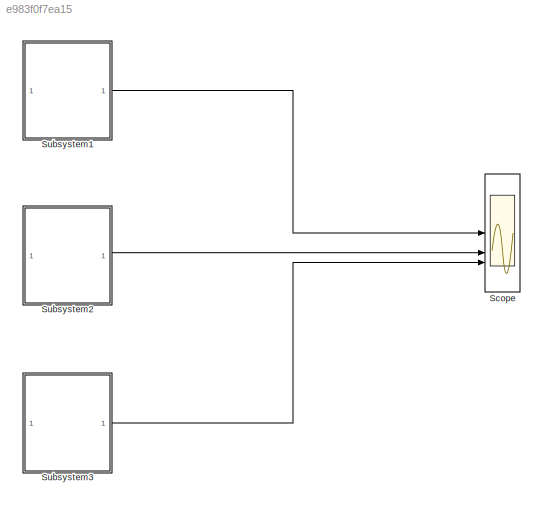
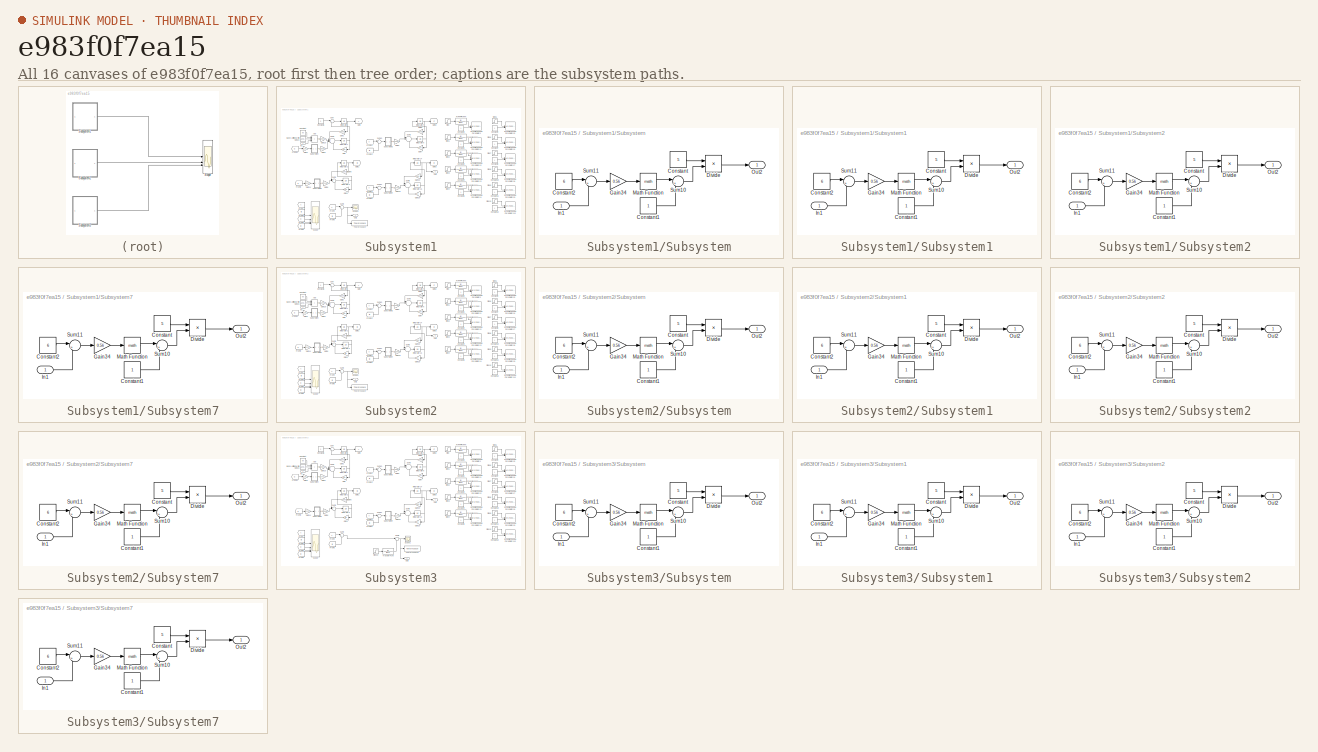
[diagram: thumbnail index - all 16 canvases of the model, root first then tree order]
MODEL slx_e983f0f7ea15
KIND model
CONFIG AbsTol = auto
CONFIG EnableMultiTasking = off
CONFIG FixedStep = auto
CONFIG MaxStep = auto
CONFIG MinStep = auto
CONFIG RelTol = 1e-3
CONFIG SampleTimeConstraint = Unconstrained
CONFIG SolverName = VariableStepAuto
CONFIG StartTime = 0.0
CONFIG StopTime = 10.0
BLOCK [Scope] Scope
  Floating = off
  NumInputPorts = 3
  ScopeSpecificationString = Simulink.scopes.TimeScopeBlockCfg('CurrentConfiguration', extmgr.ConfigurationSet(extmgr.Configuration('Core','General UI',true),extmgr.Configuration('Core','Source UI',true),extmgr.Configuration('Sources','WiredSimulink',true,'DataLoggingVariableName','ScopeData1'),extmgr.Configuration('Visuals','Time Domain',true,'SerializedDisplays',{struct('MinYLimReal','-0.12601','MaxYLimReal','0.55798','YLab...<+1520ch>
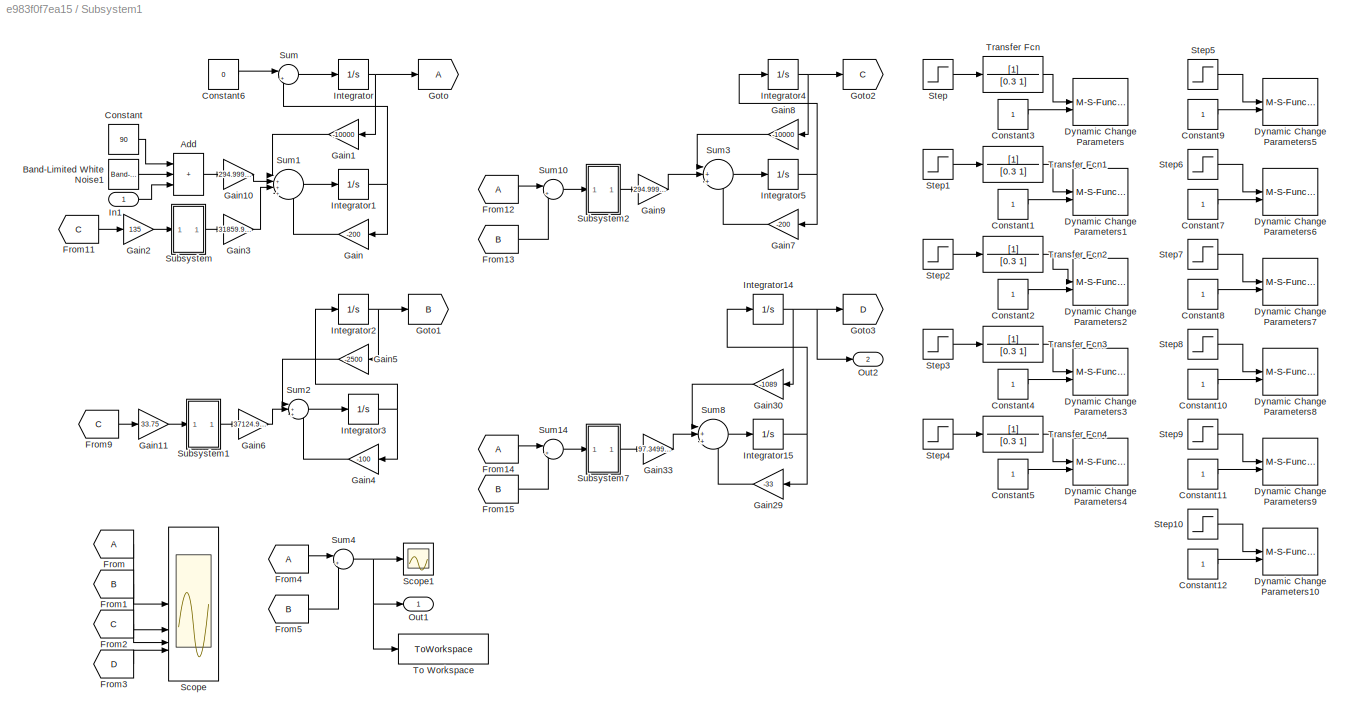
BLOCK [SubSystem] Subsystem1
  Commented = on
BLOCK [Sum] Subsystem1/Add
  IconShape = rectangular
  Inputs = +++
BLOCK [Reference] Subsystem1/Band-Limited White Noise1  REF=simulink/Sources/Band-Limited
White Noise
  SourceBlock = simulink/Sources/Band-Limited\nWhite Noise
  SourceType = Band-Limited White Noise.
BLOCK [Constant] Subsystem1/Constant
  Value = 90
BLOCK [Constant] Subsystem1/Constant1
BLOCK [Constant] Subsystem1/Constant10
BLOCK [Constant] Subsystem1/Constant11
BLOCK [Constant] Subsystem1/Constant12
BLOCK [Constant] Subsystem1/Constant2
BLOCK [Constant] Subsystem1/Constant3
BLOCK [Constant] Subsystem1/Constant4
BLOCK [Constant] Subsystem1/Constant5
BLOCK [Constant] Subsystem1/Constant6
  Value = 0
BLOCK [Constant] Subsystem1/Constant7
BLOCK [Constant] Subsystem1/Constant8
BLOCK [Constant] Subsystem1/Constant9
BLOCK [M-S-Function] Subsystem1/Dynamic Change Parameters
  FunctionName = Sfun_DCP
  Parameters = block_name,par_name,sample_time,dimension
  StopFcn = close(clf)
BLOCK [M-S-Function] Subsystem1/Dynamic Change Parameters1
  FunctionName = Sfun_DCP
  Parameters = block_name,par_name,sample_time,dimension
  StopFcn = close(clf)
BLOCK [M-S-Function] Subsystem1/Dynamic Change Parameters10
  FunctionName = Sfun_DCP
  Parameters = block_name,par_name,sample_time,dimension
  StopFcn = close(clf)
BLOCK [M-S-Function] Subsystem1/Dynamic Change Parameters2
  FunctionName = Sfun_DCP
  Parameters = block_name,par_name,sample_time,dimension
  StopFcn = close(clf)
BLOCK [M-S-Function] Subsystem1/Dynamic Change Parameters3
  FunctionName = Sfun_DCP
  Parameters = block_name,par_name,sample_time,dimension
  StopFcn = close(clf)
BLOCK [M-S-Function] Subsystem1/Dynamic Change Parameters4
  FunctionName = Sfun_DCP
  Parameters = block_name,par_name,sample_time,dimension
  StopFcn = close(clf)
BLOCK [M-S-Function] Subsystem1/Dynamic Change Parameters5
  FunctionName = Sfun_DCP
  Parameters = block_name,par_name,sample_time,dimension
  StopFcn = close(clf)
BLOCK [M-S-Function] Subsystem1/Dynamic Change Parameters6
  FunctionName = Sfun_DCP
  Parameters = block_name,par_name,sample_time,dimension
  StopFcn = close(clf)
BLOCK [M-S-Function] Subsystem1/Dynamic Change Parameters7
  FunctionName = Sfun_DCP
  Parameters = block_name,par_name,sample_time,dimension
  StopFcn = close(clf)
BLOCK [M-S-Function] Subsystem1/Dynamic Change Parameters8
  FunctionName = Sfun_DCP
  Parameters = block_name,par_name,sample_time,dimension
  StopFcn = close(clf)
BLOCK [M-S-Function] Subsystem1/Dynamic Change Parameters9
  FunctionName = Sfun_DCP
  Parameters = block_name,par_name,sample_time,dimension
  StopFcn = close(clf)
BLOCK [From] Subsystem1/From
BLOCK [From] Subsystem1/From1
  GotoTag = B
BLOCK [From] Subsystem1/From11
  GotoTag = C
BLOCK [From] Subsystem1/From12
BLOCK [From] Subsystem1/From13
  GotoTag = B
BLOCK [From] Subsystem1/From14
BLOCK [From] Subsystem1/From15
  GotoTag = B
BLOCK [From] Subsystem1/From2
  GotoTag = C
BLOCK [From] Subsystem1/From3
  GotoTag = D
BLOCK [From] Subsystem1/From4
BLOCK [From] Subsystem1/From5
  GotoTag = B
BLOCK [From] Subsystem1/From9
  GotoTag = C
BLOCK [Gain] Subsystem1/Gain
  Gain = -200
BLOCK [Gain] Subsystem1/Gain1
  Gain = -10000
BLOCK [Gain] Subsystem1/Gain10
  Gain = 294.999964251017
BLOCK [Gain] Subsystem1/Gain11
  Gain = 33.75
BLOCK [Gain] Subsystem1/Gain2
  Gain = 135
BLOCK [Gain] Subsystem1/Gain29
  Gain = -33
BLOCK [Gain] Subsystem1/Gain3
  Gain = 31859.9961391099
BLOCK [Gain] Subsystem1/Gain30
  Gain = -1089
BLOCK [Gain] Subsystem1/Gain33
  Gain = 97.3499882028357
BLOCK [Gain] Subsystem1/Gain4
  Gain = -100
BLOCK [Gain] Subsystem1/Gain5
  Gain = -2500
BLOCK [Gain] Subsystem1/Gain6
  Gain = 37124.9999999991
BLOCK [Gain] Subsystem1/Gain7
  Gain = -200
BLOCK [Gain] Subsystem1/Gain8
  Gain = -10000
BLOCK [Gain] Subsystem1/Gain9
  Gain = 294.999964251017
BLOCK [Goto] Subsystem1/Goto
BLOCK [Goto] Subsystem1/Goto1
  GotoTag = B
BLOCK [Goto] Subsystem1/Goto2
  GotoTag = C
BLOCK [Goto] Subsystem1/Goto3
  GotoTag = D
BLOCK [Inport] Subsystem1/In1
BLOCK [Integrator] Subsystem1/Integrator
BLOCK [Integrator] Subsystem1/Integrator1
BLOCK [Integrator] Subsystem1/Integrator14
BLOCK [Integrator] Subsystem1/Integrator15
BLOCK [Integrator] Subsystem1/Integrator2
BLOCK [Integrator] Subsystem1/Integrator3
BLOCK [Integrator] Subsystem1/Integrator4
BLOCK [Integrator] Subsystem1/Integrator5
BLOCK [Outport] Subsystem1/Out1
BLOCK [Outport] Subsystem1/Out2
  Port = 2
BLOCK [Scope] Subsystem1/Scope
  Floating = off
  NumInputPorts = 4
  ScopeSpecificationString = Simulink.scopes.TimeScopeBlockCfg('CurrentConfiguration', extmgr.ConfigurationSet(extmgr.Configuration('Core','General UI',true),extmgr.Configuration('Core','Source UI',true),extmgr.Configuration('Sources','WiredSimulink',true,'DataLoggingVariableName','ScopeData1'),extmgr.Configuration('Visuals','Time Domain',true,'SerializedDisplays',{struct('MinYLimReal','-0.41375','MaxYLimReal','3.72374','YLab...<+3436ch>
BLOCK [Scope] Subsystem1/Scope1
  Floating = off
  NumInputPorts = 1
  ScopeSpecificationString = Simulink.scopes.TimeScopeBlockCfg('CurrentConfiguration', extmgr.ConfigurationSet(extmgr.Configuration('Core','General UI',true),extmgr.Configuration('Core','Source UI',true),extmgr.Configuration('Sources','WiredSimulink',true),extmgr.Configuration('Visuals','Time Domain',true,'SerializedDisplays',{struct('MinYLimReal','-0.14551','MaxYLimReal','0.87431','YLabelReal','','MinYLimMag','0.00000','MaxY...<+1376ch>
BLOCK [Step] Subsystem1/Step
  After = 295
  Before = 235
  SampleTime = 0
  Time = 5.7
BLOCK [Step] Subsystem1/Step1
  After = 295*108
  Before = 235*108
  SampleTime = 0
  Time = 5.7
BLOCK [Step] Subsystem1/Step10
  After = -200
  Before = -200
  SampleTime = 0
  Time = 5.7
BLOCK [Step] Subsystem1/Step2
  After = 24*50*33.75
  Before = 22*50*33.75
  SampleTime = 0
  Time = 100
BLOCK [Step] Subsystem1/Step3
  After = 295
  Before = 235
  SampleTime = 0
  Time = 5.7
BLOCK [Step] Subsystem1/Step4
  After = 2.95*33
  Before = 2.35*33
  SampleTime = 0
  Time = 5.7
BLOCK [Step] Subsystem1/Step5
  After = -10000
  Before = -10000
  SampleTime = 0
  Time = 5.7
BLOCK [Step] Subsystem1/Step6
  After = -200
  Before = -200
  SampleTime = 0
  Time = 5.7
BLOCK [Step] Subsystem1/Step7
  After = -2500
  Before = -2500
  SampleTime = 0
  Time = 100
BLOCK [Step] Subsystem1/Step8
  After = -100
  Before = -100
  SampleTime = 0
  Time = 5.7
BLOCK [Step] Subsystem1/Step9
  After = -10000
  Before = -10000
  SampleTime = 0
  Time = 5.7
BLOCK [SubSystem] Subsystem1/Subsystem
BLOCK [Constant] Subsystem1/Subsystem/Constant
  Value = 5
BLOCK [Constant] Subsystem1/Subsystem/Constant1
BLOCK [Constant] Subsystem1/Subsystem/Constant2
  Value = 6
BLOCK [Product] Subsystem1/Subsystem/Divide
  Inputs = */
BLOCK [Gain] Subsystem1/Subsystem/Gain34
  Gain = 0.56
BLOCK [Inport] Subsystem1/Subsystem/In1
BLOCK [Math] Subsystem1/Subsystem/Math Function
BLOCK [Outport] Subsystem1/Subsystem/Out2
BLOCK [Sum] Subsystem1/Subsystem/Sum10
  Inputs = |++
BLOCK [Sum] Subsystem1/Subsystem/Sum11
  Inputs = |+-
BLOCK [SubSystem] Subsystem1/Subsystem1
BLOCK [Constant] Subsystem1/Subsystem1/Constant
  Value = 5
BLOCK [Constant] Subsystem1/Subsystem1/Constant1
BLOCK [Constant] Subsystem1/Subsystem1/Constant2
  Value = 6
BLOCK [Product] Subsystem1/Subsystem1/Divide
  Inputs = */
BLOCK [Gain] Subsystem1/Subsystem1/Gain34
  Gain = 0.56
BLOCK [Inport] Subsystem1/Subsystem1/In1
BLOCK [Math] Subsystem1/Subsystem1/Math Function
BLOCK [Outport] Subsystem1/Subsystem1/Out2
BLOCK [Sum] Subsystem1/Subsystem1/Sum10
  Inputs = |++
BLOCK [Sum] Subsystem1/Subsystem1/Sum11
  Inputs = |+-
BLOCK [SubSystem] Subsystem1/Subsystem2
BLOCK [Constant] Subsystem1/Subsystem2/Constant
  Value = 5
BLOCK [Constant] Subsystem1/Subsystem2/Constant1
BLOCK [Constant] Subsystem1/Subsystem2/Constant2
  Value = 6
BLOCK [Product] Subsystem1/Subsystem2/Divide
  Inputs = */
BLOCK [Gain] Subsystem1/Subsystem2/Gain34
  Gain = 0.56
BLOCK [Inport] Subsystem1/Subsystem2/In1
BLOCK [Math] Subsystem1/Subsystem2/Math Function
BLOCK [Outport] Subsystem1/Subsystem2/Out2
BLOCK [Sum] Subsystem1/Subsystem2/Sum10
  Inputs = |++
BLOCK [Sum] Subsystem1/Subsystem2/Sum11
  Inputs = |+-
BLOCK [SubSystem] Subsystem1/Subsystem7
BLOCK [Constant] Subsystem1/Subsystem7/Constant
  Value = 5
BLOCK [Constant] Subsystem1/Subsystem7/Constant1
BLOCK [Constant] Subsystem1/Subsystem7/Constant2
  Value = 6
BLOCK [Product] Subsystem1/Subsystem7/Divide
  Inputs = */
BLOCK [Gain] Subsystem1/Subsystem7/Gain34
  Gain = 0.56
BLOCK [Inport] Subsystem1/Subsystem7/In1
BLOCK [Math] Subsystem1/Subsystem7/Math Function
BLOCK [Outport] Subsystem1/Subsystem7/Out2
BLOCK [Sum] Subsystem1/Subsystem7/Sum10
  Inputs = |++
BLOCK [Sum] Subsystem1/Subsystem7/Sum11
  Inputs = |+-
BLOCK [Sum] Subsystem1/Sum
  Inputs = |++
BLOCK [Sum] Subsystem1/Sum1
  Inputs = |++++
BLOCK [Sum] Subsystem1/Sum10
  Inputs = |+-
BLOCK [Sum] Subsystem1/Sum14
  Inputs = |+-
BLOCK [Sum] Subsystem1/Sum2
  Inputs = |+++
BLOCK [Sum] Subsystem1/Sum3
  Inputs = |+++
BLOCK [Sum] Subsystem1/Sum4
  Inputs = |+-
BLOCK [Sum] Subsystem1/Sum8
  Inputs = |+++
BLOCK [ToWorkspace] Subsystem1/To Workspace
  FixptAsFi = on
  MaxDataPoints = inf
  SampleTime = -1
  SaveFormat = Timeseries
  VariableName = simout1
BLOCK [TransferFcn] Subsystem1/Transfer Fcn
  Denominator = [0.3 1]
BLOCK [TransferFcn] Subsystem1/Transfer Fcn1
  Denominator = [0.3 1]
BLOCK [TransferFcn] Subsystem1/Transfer Fcn2
  Denominator = [0.3 1]
BLOCK [TransferFcn] Subsystem1/Transfer Fcn3
  Denominator = [0.3 1]
BLOCK [TransferFcn] Subsystem1/Transfer Fcn4
  Denominator = [0.3 1]
BLOCK [SubSystem] Subsystem2
BLOCK [Sum] Subsystem2/Add
  IconShape = rectangular
  Inputs = +++
BLOCK [Reference] Subsystem2/Band-Limited White Noise1  REF=simulink/Sources/Band-Limited
White Noise
  SourceBlock = simulink/Sources/Band-Limited\nWhite Noise
  SourceType = Band-Limited White Noise.
BLOCK [Constant] Subsystem2/Constant
  Value = 90
BLOCK [Constant] Subsystem2/Constant1
BLOCK [Constant] Subsystem2/Constant10
BLOCK [Constant] Subsystem2/Constant11
BLOCK [Constant] Subsystem2/Constant12
BLOCK [Constant] Subsystem2/Constant2
BLOCK [Constant] Subsystem2/Constant3
BLOCK [Constant] Subsystem2/Constant4
BLOCK [Constant] Subsystem2/Constant5
BLOCK [Constant] Subsystem2/Constant6
  Value = 0
BLOCK [Constant] Subsystem2/Constant7
BLOCK [Constant] Subsystem2/Constant8
BLOCK [Constant] Subsystem2/Constant9
BLOCK [M-S-Function] Subsystem2/Dynamic Change Parameters
  FunctionName = Sfun_DCP
  Parameters = block_name,par_name,sample_time,dimension
  StopFcn = close(clf)
BLOCK [M-S-Function] Subsystem2/Dynamic Change Parameters1
  FunctionName = Sfun_DCP
  Parameters = block_name,par_name,sample_time,dimension
  StopFcn = close(clf)
BLOCK [M-S-Function] Subsystem2/Dynamic Change Parameters10
  FunctionName = Sfun_DCP
  Parameters = block_name,par_name,sample_time,dimension
  StopFcn = close(clf)
BLOCK [M-S-Function] Subsystem2/Dynamic Change Parameters2
  FunctionName = Sfun_DCP
  Parameters = block_name,par_name,sample_time,dimension
  StopFcn = close(clf)
BLOCK [M-S-Function] Subsystem2/Dynamic Change Parameters3
  FunctionName = Sfun_DCP
  Parameters = block_name,par_name,sample_time,dimension
  StopFcn = close(clf)
BLOCK [M-S-Function] Subsystem2/Dynamic Change Parameters4
  FunctionName = Sfun_DCP
  Parameters = block_name,par_name,sample_time,dimension
  StopFcn = close(clf)
BLOCK [M-S-Function] Subsystem2/Dynamic Change Parameters5
  FunctionName = Sfun_DCP
  Parameters = block_name,par_name,sample_time,dimension
  StopFcn = close(clf)
BLOCK [M-S-Function] Subsystem2/Dynamic Change Parameters6
  FunctionName = Sfun_DCP
  Parameters = block_name,par_name,sample_time,dimension
  StopFcn = close(clf)
BLOCK [M-S-Function] Subsystem2/Dynamic Change Parameters7
  FunctionName = Sfun_DCP
  Parameters = block_name,par_name,sample_time,dimension
  StopFcn = close(clf)
BLOCK [M-S-Function] Subsystem2/Dynamic Change Parameters8
  FunctionName = Sfun_DCP
  Parameters = block_name,par_name,sample_time,dimension
  StopFcn = close(clf)
BLOCK [M-S-Function] Subsystem2/Dynamic Change Parameters9
  FunctionName = Sfun_DCP
  Parameters = block_name,par_name,sample_time,dimension
  StopFcn = close(clf)
BLOCK [From] Subsystem2/From
BLOCK [From] Subsystem2/From1
  GotoTag = B
BLOCK [From] Subsystem2/From11
  GotoTag = C
BLOCK [From] Subsystem2/From12
BLOCK [From] Subsystem2/From13
  GotoTag = B
BLOCK [From] Subsystem2/From14
BLOCK [From] Subsystem2/From15
  GotoTag = B
BLOCK [From] Subsystem2/From2
  GotoTag = C
BLOCK [From] Subsystem2/From3
  GotoTag = D
BLOCK [From] Subsystem2/From4
BLOCK [From] Subsystem2/From5
  GotoTag = B
BLOCK [From] Subsystem2/From9
  GotoTag = C
BLOCK [Gain] Subsystem2/Gain
  Gain = -190
BLOCK [Gain] Subsystem2/Gain1
  Gain = -9025
BLOCK [Gain] Subsystem2/Gain10
  Gain = 275.499975869437
BLOCK [Gain] Subsystem2/Gain11
  Gain = 33.75
BLOCK [Gain] Subsystem2/Gain2
  Gain = 135
BLOCK [Gain] Subsystem2/Gain29
  Gain = -33
BLOCK [Gain] Subsystem2/Gain3
  Gain = 29753.9973938992
BLOCK [Gain] Subsystem2/Gain30
  Gain = -1089
BLOCK [Gain] Subsystem2/Gain33
  Gain = 95.6999891859327
BLOCK [Gain] Subsystem2/Gain4
  Gain = -96
BLOCK [Gain] Subsystem2/Gain5
  Gain = -2304
BLOCK [Gain] Subsystem2/Gain6
  Gain = 38879.9989543421
BLOCK [Gain] Subsystem2/Gain7
  Gain = -190
BLOCK [Gain] Subsystem2/Gain8
  Gain = -9025
BLOCK [Gain] Subsystem2/Gain9
  Gain = 275.499975869437
BLOCK [Goto] Subsystem2/Goto
BLOCK [Goto] Subsystem2/Goto1
  GotoTag = B
BLOCK [Goto] Subsystem2/Goto2
  GotoTag = C
BLOCK [Goto] Subsystem2/Goto3
  GotoTag = D
BLOCK [Inport] Subsystem2/In1
BLOCK [Integrator] Subsystem2/Integrator
BLOCK [Integrator] Subsystem2/Integrator1
BLOCK [Integrator] Subsystem2/Integrator14
BLOCK [Integrator] Subsystem2/Integrator15
BLOCK [Integrator] Subsystem2/Integrator2
BLOCK [Integrator] Subsystem2/Integrator3
BLOCK [Integrator] Subsystem2/Integrator4
BLOCK [Integrator] Subsystem2/Integrator5
BLOCK [Outport] Subsystem2/Out1
BLOCK [Outport] Subsystem2/Out2
  Port = 2
BLOCK [Scope] Subsystem2/Scope
  Floating = off
  NumInputPorts = 4
  ScopeSpecificationString = Simulink.scopes.TimeScopeBlockCfg('CurrentConfiguration', extmgr.ConfigurationSet(extmgr.Configuration('Core','General UI',true),extmgr.Configuration('Core','Source UI',true),extmgr.Configuration('Sources','WiredSimulink',true,'DataLoggingVariableName','ScopeData1'),extmgr.Configuration('Visuals','Time Domain',true,'SerializedDisplays',{struct('MinYLimReal','-0.45253','MaxYLimReal','4.07276','YLab...<+3437ch>
BLOCK [Scope] Subsystem2/Scope1
  Floating = off
  NumInputPorts = 1
  ScopeSpecificationString = Simulink.scopes.TimeScopeBlockCfg('CurrentConfiguration', extmgr.ConfigurationSet(extmgr.Configuration('Core','General UI',true),extmgr.Configuration('Core','Source UI',true),extmgr.Configuration('Sources','WiredSimulink',true),extmgr.Configuration('Visuals','Time Domain',true,'SerializedDisplays',{struct('MinYLimReal','-0.12601','MaxYLimReal','0.55798','YLabelReal','','MinYLimMag','0.00000','MaxY...<+1376ch>
BLOCK [Step] Subsystem2/Step
  After = 2.90*95
  Before = 2.35*100
  SampleTime = 0
  Time = 5.7
BLOCK [Step] Subsystem2/Step1
  After = 2.90*95*108
  Before = 2.35*100*108
  SampleTime = 0
  Time = 5.7
BLOCK [Step] Subsystem2/Step10
  After = -190
  Before = -200
  SampleTime = 0
  Time = 5.7
BLOCK [Step] Subsystem2/Step2
  After = 24*48*33.75
  Before = 22*50*33.75
  SampleTime = 0
  Time = 5.7
BLOCK [Step] Subsystem2/Step3
  After = 2.90*95
  Before = 2.35*100
  SampleTime = 0
  Time = 5.7
BLOCK [Step] Subsystem2/Step4
  After = 2.90*33
  Before = 2.35*33
  SampleTime = 0
  Time = 5.7
BLOCK [Step] Subsystem2/Step5
  After = -9025
  Before = -10000
  SampleTime = 0
  Time = 5.7
BLOCK [Step] Subsystem2/Step6
  After = -190
  Before = -200
  SampleTime = 0
  Time = 5.7
BLOCK [Step] Subsystem2/Step7
  After = -2304
  Before = -2500
  SampleTime = 0
  Time = 5.7
BLOCK [Step] Subsystem2/Step8
  After = -96
  Before = -100
  SampleTime = 0
  Time = 5.7
BLOCK [Step] Subsystem2/Step9
  After = -9025
  Before = -10000
  SampleTime = 0
  Time = 5.7
BLOCK [SubSystem] Subsystem2/Subsystem
BLOCK [Constant] Subsystem2/Subsystem/Constant
  Value = 5
BLOCK [Constant] Subsystem2/Subsystem/Constant1
BLOCK [Constant] Subsystem2/Subsystem/Constant2
  Value = 6
BLOCK [Product] Subsystem2/Subsystem/Divide
  Inputs = */
BLOCK [Gain] Subsystem2/Subsystem/Gain34
  Gain = 0.56
BLOCK [Inport] Subsystem2/Subsystem/In1
BLOCK [Math] Subsystem2/Subsystem/Math Function
BLOCK [Outport] Subsystem2/Subsystem/Out2
BLOCK [Sum] Subsystem2/Subsystem/Sum10
  Inputs = |++
BLOCK [Sum] Subsystem2/Subsystem/Sum11
  Inputs = |+-
BLOCK [SubSystem] Subsystem2/Subsystem1
BLOCK [Constant] Subsystem2/Subsystem1/Constant
  Value = 5
BLOCK [Constant] Subsystem2/Subsystem1/Constant1
BLOCK [Constant] Subsystem2/Subsystem1/Constant2
  Value = 6
BLOCK [Product] Subsystem2/Subsystem1/Divide
  Inputs = */
BLOCK [Gain] Subsystem2/Subsystem1/Gain34
  Gain = 0.56
BLOCK [Inport] Subsystem2/Subsystem1/In1
BLOCK [Math] Subsystem2/Subsystem1/Math Function
BLOCK [Outport] Subsystem2/Subsystem1/Out2
BLOCK [Sum] Subsystem2/Subsystem1/Sum10
  Inputs = |++
BLOCK [Sum] Subsystem2/Subsystem1/Sum11
  Inputs = |+-
BLOCK [SubSystem] Subsystem2/Subsystem2
BLOCK [Constant] Subsystem2/Subsystem2/Constant
  Value = 5
BLOCK [Constant] Subsystem2/Subsystem2/Constant1
BLOCK [Constant] Subsystem2/Subsystem2/Constant2
  Value = 6
BLOCK [Product] Subsystem2/Subsystem2/Divide
  Inputs = */
BLOCK [Gain] Subsystem2/Subsystem2/Gain34
  Gain = 0.56
BLOCK [Inport] Subsystem2/Subsystem2/In1
BLOCK [Math] Subsystem2/Subsystem2/Math Function
BLOCK [Outport] Subsystem2/Subsystem2/Out2
BLOCK [Sum] Subsystem2/Subsystem2/Sum10
  Inputs = |++
BLOCK [Sum] Subsystem2/Subsystem2/Sum11
  Inputs = |+-
BLOCK [SubSystem] Subsystem2/Subsystem7
BLOCK [Constant] Subsystem2/Subsystem7/Constant
  Value = 5
BLOCK [Constant] Subsystem2/Subsystem7/Constant1
BLOCK [Constant] Subsystem2/Subsystem7/Constant2
  Value = 6
BLOCK [Product] Subsystem2/Subsystem7/Divide
  Inputs = */
BLOCK [Gain] Subsystem2/Subsystem7/Gain34
  Gain = 0.56
BLOCK [Inport] Subsystem2/Subsystem7/In1
BLOCK [Math] Subsystem2/Subsystem7/Math Function
BLOCK [Outport] Subsystem2/Subsystem7/Out2
BLOCK [Sum] Subsystem2/Subsystem7/Sum10
  Inputs = |++
BLOCK [Sum] Subsystem2/Subsystem7/Sum11
  Inputs = |+-
BLOCK [Sum] Subsystem2/Sum
  Inputs = |++
BLOCK [Sum] Subsystem2/Sum1
  Inputs = |++++
BLOCK [Sum] Subsystem2/Sum10
  Inputs = |+-
BLOCK [Sum] Subsystem2/Sum14
  Inputs = |+-
BLOCK [Sum] Subsystem2/Sum2
  Inputs = |+++
BLOCK [Sum] Subsystem2/Sum3
  Inputs = |+++
BLOCK [Sum] Subsystem2/Sum4
  Inputs = |+-
BLOCK [Sum] Subsystem2/Sum8
  Inputs = |+++
BLOCK [ToWorkspace] Subsystem2/To Workspace
  FixptAsFi = on
  MaxDataPoints = inf
  SampleTime = -1
  SaveFormat = Timeseries
  VariableName = simout2
BLOCK [TransferFcn] Subsystem2/Transfer Fcn
  Denominator = [0.3 1]
BLOCK [TransferFcn] Subsystem2/Transfer Fcn1
  Denominator = [0.3 1]
BLOCK [TransferFcn] Subsystem2/Transfer Fcn2
  Denominator = [0.3 1]
BLOCK [TransferFcn] Subsystem2/Transfer Fcn3
  Denominator = [0.3 1]
BLOCK [TransferFcn] Subsystem2/Transfer Fcn4
  Denominator = [0.3 1]
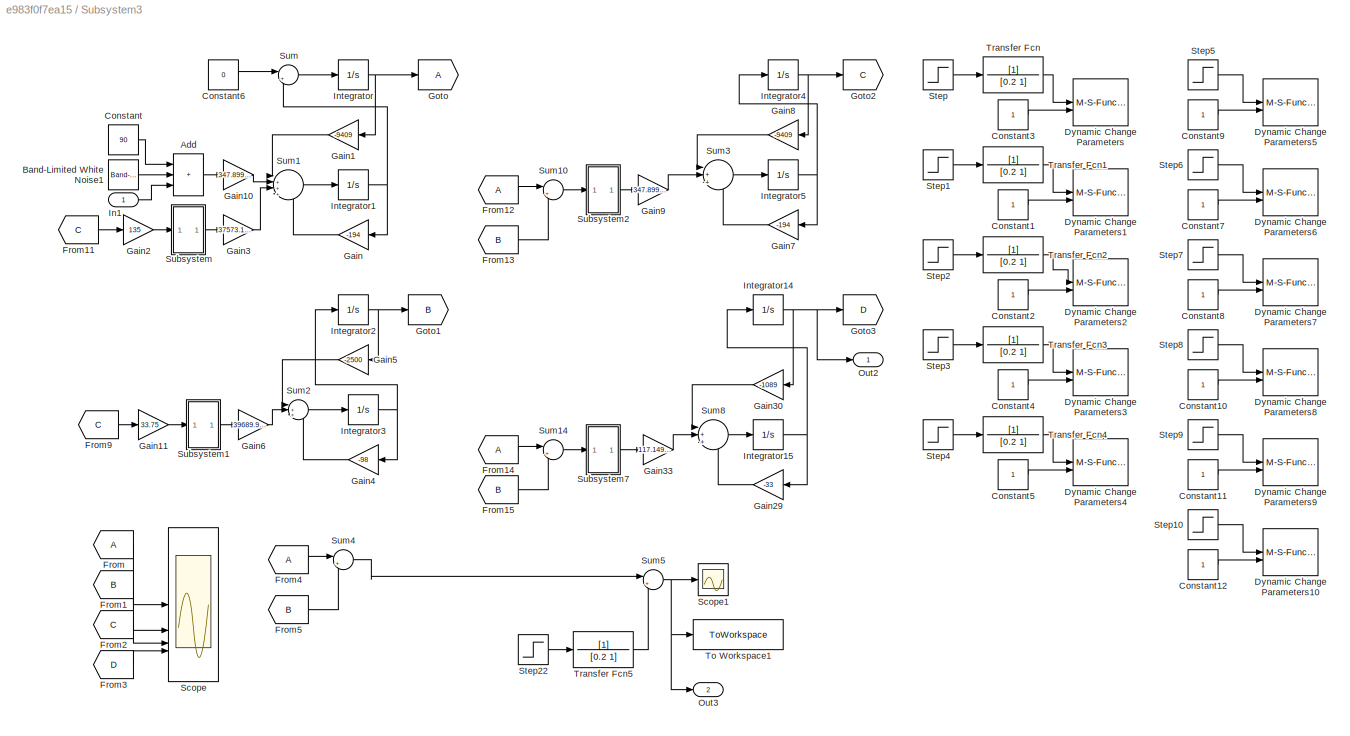
BLOCK [SubSystem] Subsystem3
  Commented = on
BLOCK [Sum] Subsystem3/Add
  IconShape = rectangular
  Inputs = +++
BLOCK [Reference] Subsystem3/Band-Limited White Noise1  REF=simulink/Sources/Band-Limited
White Noise
  SourceBlock = simulink/Sources/Band-Limited\nWhite Noise
  SourceType = Band-Limited White Noise.
BLOCK [Constant] Subsystem3/Constant
  Value = 90
BLOCK [Constant] Subsystem3/Constant1
BLOCK [Constant] Subsystem3/Constant10
BLOCK [Constant] Subsystem3/Constant11
BLOCK [Constant] Subsystem3/Constant12
BLOCK [Constant] Subsystem3/Constant2
BLOCK [Constant] Subsystem3/Constant3
BLOCK [Constant] Subsystem3/Constant4
BLOCK [Constant] Subsystem3/Constant5
BLOCK [Constant] Subsystem3/Constant6
  Value = 0
BLOCK [Constant] Subsystem3/Constant7
BLOCK [Constant] Subsystem3/Constant8
BLOCK [Constant] Subsystem3/Constant9
BLOCK [M-S-Function] Subsystem3/Dynamic Change Parameters
  FunctionName = Sfun_DCP
  Parameters = block_name,par_name,sample_time,dimension
  StopFcn = close(clf)
BLOCK [M-S-Function] Subsystem3/Dynamic Change Parameters1
  FunctionName = Sfun_DCP
  Parameters = block_name,par_name,sample_time,dimension
  StopFcn = close(clf)
BLOCK [M-S-Function] Subsystem3/Dynamic Change Parameters10
  FunctionName = Sfun_DCP
  Parameters = block_name,par_name,sample_time,dimension
  StopFcn = close(clf)
BLOCK [M-S-Function] Subsystem3/Dynamic Change Parameters2
  FunctionName = Sfun_DCP
  Parameters = block_name,par_name,sample_time,dimension
  StopFcn = close(clf)
BLOCK [M-S-Function] Subsystem3/Dynamic Change Parameters3
  FunctionName = Sfun_DCP
  Parameters = block_name,par_name,sample_time,dimension
  StopFcn = close(clf)
BLOCK [M-S-Function] Subsystem3/Dynamic Change Parameters4
  FunctionName = Sfun_DCP
  Parameters = block_name,par_name,sample_time,dimension
  StopFcn = close(clf)
BLOCK [M-S-Function] Subsystem3/Dynamic Change Parameters5
  FunctionName = Sfun_DCP
  Parameters = block_name,par_name,sample_time,dimension
  StopFcn = close(clf)
BLOCK [M-S-Function] Subsystem3/Dynamic Change Parameters6
  FunctionName = Sfun_DCP
  Parameters = block_name,par_name,sample_time,dimension
  StopFcn = close(clf)
BLOCK [M-S-Function] Subsystem3/Dynamic Change Parameters7
  FunctionName = Sfun_DCP
  Parameters = block_name,par_name,sample_time,dimension
  StopFcn = close(clf)
BLOCK [M-S-Function] Subsystem3/Dynamic Change Parameters8
  FunctionName = Sfun_DCP
  Parameters = block_name,par_name,sample_time,dimension
  StopFcn = close(clf)
BLOCK [M-S-Function] Subsystem3/Dynamic Change Parameters9
  FunctionName = Sfun_DCP
  Parameters = block_name,par_name,sample_time,dimension
  StopFcn = close(clf)
BLOCK [From] Subsystem3/From
BLOCK [From] Subsystem3/From1
  GotoTag = B
BLOCK [From] Subsystem3/From11
  GotoTag = C
BLOCK [From] Subsystem3/From12
BLOCK [From] Subsystem3/From13
  GotoTag = B
BLOCK [From] Subsystem3/From14
BLOCK [From] Subsystem3/From15
  GotoTag = B
BLOCK [From] Subsystem3/From2
  GotoTag = C
BLOCK [From] Subsystem3/From3
  GotoTag = D
BLOCK [From] Subsystem3/From4
BLOCK [From] Subsystem3/From5
  GotoTag = B
BLOCK [From] Subsystem3/From9
  GotoTag = C
BLOCK [Gain] Subsystem3/Gain
  Gain = -194
BLOCK [Gain] Subsystem3/Gain1
  Gain = -9409
BLOCK [Gain] Subsystem3/Gain10
  Gain = 347.899999980898
BLOCK [Gain] Subsystem3/Gain11
  Gain = 33.75
BLOCK [Gain] Subsystem3/Gain2
  Gain = 135
BLOCK [Gain] Subsystem3/Gain29
  Gain = -33
BLOCK [Gain] Subsystem3/Gain3
  Gain = 37573.199997937
BLOCK [Gain] Subsystem3/Gain30
  Gain = -1089
BLOCK [Gain] Subsystem3/Gain33
  Gain = 117.1499999933
BLOCK [Gain] Subsystem3/Gain4
  Gain = -98
BLOCK [Gain] Subsystem3/Gain5
  Gain = -2500
BLOCK [Gain] Subsystem3/Gain6
  Gain = 39689.999999566
BLOCK [Gain] Subsystem3/Gain7
  Gain = -194
BLOCK [Gain] Subsystem3/Gain8
  Gain = -9409
BLOCK [Gain] Subsystem3/Gain9
  Gain = 347.899999980898
BLOCK [Goto] Subsystem3/Goto
BLOCK [Goto] Subsystem3/Goto1
  GotoTag = B
BLOCK [Goto] Subsystem3/Goto2
  GotoTag = C
BLOCK [Goto] Subsystem3/Goto3
  GotoTag = D
BLOCK [Inport] Subsystem3/In1
BLOCK [Integrator] Subsystem3/Integrator
BLOCK [Integrator] Subsystem3/Integrator1
BLOCK [Integrator] Subsystem3/Integrator14
BLOCK [Integrator] Subsystem3/Integrator15
BLOCK [Integrator] Subsystem3/Integrator2
BLOCK [Integrator] Subsystem3/Integrator3
BLOCK [Integrator] Subsystem3/Integrator4
BLOCK [Integrator] Subsystem3/Integrator5
BLOCK [Outport] Subsystem3/Out2
BLOCK [Outport] Subsystem3/Out3
  Port = 2
BLOCK [Scope] Subsystem3/Scope
  Floating = off
  NumInputPorts = 4
  ScopeSpecificationString = Simulink.scopes.TimeScopeBlockCfg('CurrentConfiguration', extmgr.ConfigurationSet(extmgr.Configuration('Core','General UI',true),extmgr.Configuration('Core','Source UI',true),extmgr.Configuration('Sources','WiredSimulink',true,'DataLoggingVariableName','ScopeData1'),extmgr.Configuration('Visuals','Time Domain',true,'SerializedDisplays',{struct('MinYLimReal','-0.74889','MaxYLimReal','6.73998','YLab...<+3437ch>
BLOCK [Scope] Subsystem3/Scope1
  Floating = off
  NumInputPorts = 1
  ScopeSpecificationString = Simulink.scopes.TimeScopeBlockCfg('CurrentConfiguration', extmgr.ConfigurationSet(extmgr.Configuration('Core','General UI',true),extmgr.Configuration('Core','Source UI',true),extmgr.Configuration('Sources','WiredSimulink',true),extmgr.Configuration('Visuals','Time Domain',true,'SerializedDisplays',{struct('MinYLimReal','-0.32752','MaxYLimReal','2.55059','YLabelReal','','MinYLimMag','0.00000','MaxY...<+1376ch>
BLOCK [Step] Subsystem3/Step
  After = 3.55*98
  Before = 2.35*100
  SampleTime = 0
  Time = 5.5
BLOCK [Step] Subsystem3/Step1
  After = 3.55*98*108
  Before = 2.35*100*108
  SampleTime = 0
  Time = 5.5
BLOCK [Step] Subsystem3/Step10
  After = -194
  Before = -200
  SampleTime = 0
  Time = 5.5
BLOCK [Step] Subsystem3/Step2
  After = 24*49*33.75
  Before = 22*50*33.75
  SampleTime = 0
  Time = 5.5
BLOCK [Step] Subsystem3/Step22
  After = 0.2
  SampleTime = 0
  Time = 6.0
BLOCK [Step] Subsystem3/Step3
  After = 3.55*98
  Before = 2.35*100
  SampleTime = 0
  Time = 5.5
BLOCK [Step] Subsystem3/Step4
  After = 3.55*33
  Before = 2.35*33
  SampleTime = 0
  Time = 5.5
BLOCK [Step] Subsystem3/Step5
  After = -9409
  Before = -10000
  SampleTime = 0
  Time = 5.5
BLOCK [Step] Subsystem3/Step6
  After = -194
  Before = -200
  SampleTime = 0
  Time = 5.5
BLOCK [Step] Subsystem3/Step7
  After = -2451
  Before = -2500
  SampleTime = 0
  Time = 100
BLOCK [Step] Subsystem3/Step8
  After = -98
  Before = -100
  SampleTime = 0
  Time = 5.5
BLOCK [Step] Subsystem3/Step9
  After = -9409
  Before = -10000
  SampleTime = 0
  Time = 5.5
BLOCK [SubSystem] Subsystem3/Subsystem
BLOCK [Constant] Subsystem3/Subsystem/Constant
  Value = 5
BLOCK [Constant] Subsystem3/Subsystem/Constant1
BLOCK [Constant] Subsystem3/Subsystem/Constant2
  Value = 6
BLOCK [Product] Subsystem3/Subsystem/Divide
  Inputs = */
BLOCK [Gain] Subsystem3/Subsystem/Gain34
  Gain = 0.56
BLOCK [Inport] Subsystem3/Subsystem/In1
BLOCK [Math] Subsystem3/Subsystem/Math Function
BLOCK [Outport] Subsystem3/Subsystem/Out2
BLOCK [Sum] Subsystem3/Subsystem/Sum10
  Inputs = |++
BLOCK [Sum] Subsystem3/Subsystem/Sum11
  Inputs = |+-
BLOCK [SubSystem] Subsystem3/Subsystem1
BLOCK [Constant] Subsystem3/Subsystem1/Constant
  Value = 5
BLOCK [Constant] Subsystem3/Subsystem1/Constant1
BLOCK [Constant] Subsystem3/Subsystem1/Constant2
  Value = 6
BLOCK [Product] Subsystem3/Subsystem1/Divide
  Inputs = */
BLOCK [Gain] Subsystem3/Subsystem1/Gain34
  Gain = 0.56
BLOCK [Inport] Subsystem3/Subsystem1/In1
BLOCK [Math] Subsystem3/Subsystem1/Math Function
BLOCK [Outport] Subsystem3/Subsystem1/Out2
BLOCK [Sum] Subsystem3/Subsystem1/Sum10
  Inputs = |++
BLOCK [Sum] Subsystem3/Subsystem1/Sum11
  Inputs = |+-
BLOCK [SubSystem] Subsystem3/Subsystem2
BLOCK [Constant] Subsystem3/Subsystem2/Constant
  Value = 5
BLOCK [Constant] Subsystem3/Subsystem2/Constant1
BLOCK [Constant] Subsystem3/Subsystem2/Constant2
  Value = 6
BLOCK [Product] Subsystem3/Subsystem2/Divide
  Inputs = */
BLOCK [Gain] Subsystem3/Subsystem2/Gain34
  Gain = 0.56
BLOCK [Inport] Subsystem3/Subsystem2/In1
BLOCK [Math] Subsystem3/Subsystem2/Math Function
BLOCK [Outport] Subsystem3/Subsystem2/Out2
BLOCK [Sum] Subsystem3/Subsystem2/Sum10
  Inputs = |++
BLOCK [Sum] Subsystem3/Subsystem2/Sum11
  Inputs = |+-
BLOCK [SubSystem] Subsystem3/Subsystem7
BLOCK [Constant] Subsystem3/Subsystem7/Constant
  Value = 5
BLOCK [Constant] Subsystem3/Subsystem7/Constant1
BLOCK [Constant] Subsystem3/Subsystem7/Constant2
  Value = 6
BLOCK [Product] Subsystem3/Subsystem7/Divide
  Inputs = */
BLOCK [Gain] Subsystem3/Subsystem7/Gain34
  Gain = 0.56
BLOCK [Inport] Subsystem3/Subsystem7/In1
BLOCK [Math] Subsystem3/Subsystem7/Math Function
BLOCK [Outport] Subsystem3/Subsystem7/Out2
BLOCK [Sum] Subsystem3/Subsystem7/Sum10
  Inputs = |++
BLOCK [Sum] Subsystem3/Subsystem7/Sum11
  Inputs = |+-
BLOCK [Sum] Subsystem3/Sum
  Inputs = |++
BLOCK [Sum] Subsystem3/Sum1
  Inputs = |++++
BLOCK [Sum] Subsystem3/Sum10
  Inputs = |+-
BLOCK [Sum] Subsystem3/Sum14
  Inputs = |+-
BLOCK [Sum] Subsystem3/Sum2
  Inputs = |+++
BLOCK [Sum] Subsystem3/Sum3
  Inputs = |+++
BLOCK [Sum] Subsystem3/Sum4
  Inputs = |+-
BLOCK [Sum] Subsystem3/Sum5
  Inputs = |++
BLOCK [Sum] Subsystem3/Sum8
  Inputs = |+++
BLOCK [ToWorkspace] Subsystem3/To Workspace1
  FixptAsFi = on
  MaxDataPoints = inf
  SampleTime = -1
  SaveFormat = Timeseries
  VariableName = simout
BLOCK [TransferFcn] Subsystem3/Transfer Fcn
  Denominator = [0.2 1]
BLOCK [TransferFcn] Subsystem3/Transfer Fcn1
  Denominator = [0.2 1]
BLOCK [TransferFcn] Subsystem3/Transfer Fcn2
  Denominator = [0.2 1]
BLOCK [TransferFcn] Subsystem3/Transfer Fcn3
  Denominator = [0.2 1]
BLOCK [TransferFcn] Subsystem3/Transfer Fcn4
  Denominator = [0.2 1]
BLOCK [TransferFcn] Subsystem3/Transfer Fcn5
  Denominator = [0.2 1]
LINE Subsystem1/Add:1 -> Subsystem1/Gain10:1
LINE Subsystem1/Band-Limited White Noise1:1 -> Subsystem1/Add:2
LINE Subsystem1/Constant10:1 -> Subsystem1/Dynamic Change Parameters8:2
LINE Subsystem1/Constant11:1 -> Subsystem1/Dynamic Change Parameters9:2
LINE Subsystem1/Constant12:1 -> Subsystem1/Dynamic Change Parameters10:2
LINE Subsystem1/Constant1:1 -> Subsystem1/Dynamic Change Parameters1:2
LINE Subsystem1/Constant2:1 -> Subsystem1/Dynamic Change Parameters2:2
LINE Subsystem1/Constant3:1 -> Subsystem1/Dynamic Change Parameters:2
LINE Subsystem1/Constant4:1 -> Subsystem1/Dynamic Change Parameters3:2
LINE Subsystem1/Constant5:1 -> Subsystem1/Dynamic Change Parameters4:2
LINE Subsystem1/Constant6:1 -> Subsystem1/Sum:1
LINE Subsystem1/Constant7:1 -> Subsystem1/Dynamic Change Parameters6:2
LINE Subsystem1/Constant8:1 -> Subsystem1/Dynamic Change Parameters7:2
LINE Subsystem1/Constant9:1 -> Subsystem1/Dynamic Change Parameters5:2
LINE Subsystem1/Constant:1 -> Subsystem1/Add:1
LINE Subsystem1/From11:1 -> Subsystem1/Gain2:1
LINE Subsystem1/From12:1 -> Subsystem1/Sum10:1
LINE Subsystem1/From13:1 -> Subsystem1/Sum10:2
LINE Subsystem1/From14:1 -> Subsystem1/Sum14:1
LINE Subsystem1/From15:1 -> Subsystem1/Sum14:2
LINE Subsystem1/From1:1 -> Subsystem1/Scope:2
LINE Subsystem1/From2:1 -> Subsystem1/Scope:3
LINE Subsystem1/From3:1 -> Subsystem1/Scope:4
LINE Subsystem1/From4:1 -> Subsystem1/Sum4:1
LINE Subsystem1/From5:1 -> Subsystem1/Sum4:2
LINE Subsystem1/From9:1 -> Subsystem1/Gain11:1
LINE Subsystem1/From:1 -> Subsystem1/Scope:1
LINE Subsystem1/Gain10:1 -> Subsystem1/Sum1:2
LINE Subsystem1/Gain11:1 -> Subsystem1/Subsystem1:1
LINE Subsystem1/Gain1:1 -> Subsystem1/Sum1:1
LINE Subsystem1/Gain29:1 -> Subsystem1/Sum8:3
LINE Subsystem1/Gain2:1 -> Subsystem1/Subsystem:1
LINE Subsystem1/Gain30:1 -> Subsystem1/Sum8:1
LINE Subsystem1/Gain33:1 -> Subsystem1/Sum8:2
LINE Subsystem1/Gain3:1 -> Subsystem1/Sum1:3
LINE Subsystem1/Gain4:1 -> Subsystem1/Sum2:3
LINE Subsystem1/Gain5:1 -> Subsystem1/Sum2:1
LINE Subsystem1/Gain6:1 -> Subsystem1/Sum2:2
LINE Subsystem1/Gain7:1 -> Subsystem1/Sum3:3
LINE Subsystem1/Gain8:1 -> Subsystem1/Sum3:1
LINE Subsystem1/Gain9:1 -> Subsystem1/Sum3:2
LINE Subsystem1/Gain:1 -> Subsystem1/Sum1:4
LINE Subsystem1/In1:1 -> Subsystem1/Add:3
NET Subsystem1/Integrator14:1 -> Subsystem1/Gain30:1, Subsystem1/Goto3:1, Subsystem1/Out2:1
NET Subsystem1/Integrator15:1 -> Subsystem1/Gain29:1, Subsystem1/Integrator14:1
NET Subsystem1/Integrator1:1 -> Subsystem1/Gain:1, Subsystem1/Sum:2
NET Subsystem1/Integrator2:1 -> Subsystem1/Gain5:1, Subsystem1/Goto1:1
NET Subsystem1/Integrator3:1 -> Subsystem1/Gain4:1, Subsystem1/Integrator2:1
NET Subsystem1/Integrator4:1 -> Subsystem1/Gain8:1, Subsystem1/Goto2:1
NET Subsystem1/Integrator5:1 -> Subsystem1/Gain7:1, Subsystem1/Integrator4:1
NET Subsystem1/Integrator:1 -> Subsystem1/Gain1:1, Subsystem1/Goto:1
LINE Subsystem1/Step10:1 -> Subsystem1/Dynamic Change Parameters10:1
LINE Subsystem1/Step1:1 -> Subsystem1/Transfer Fcn1:1
LINE Subsystem1/Step2:1 -> Subsystem1/Transfer Fcn2:1
LINE Subsystem1/Step3:1 -> Subsystem1/Transfer Fcn3:1
LINE Subsystem1/Step4:1 -> Subsystem1/Transfer Fcn4:1
LINE Subsystem1/Step5:1 -> Subsystem1/Dynamic Change Parameters5:1
LINE Subsystem1/Step6:1 -> Subsystem1/Dynamic Change Parameters6:1
LINE Subsystem1/Step7:1 -> Subsystem1/Dynamic Change Parameters7:1
LINE Subsystem1/Step8:1 -> Subsystem1/Dynamic Change Parameters8:1
LINE Subsystem1/Step9:1 -> Subsystem1/Dynamic Change Parameters9:1
LINE Subsystem1/Step:1 -> Subsystem1/Transfer Fcn:1
LINE Subsystem1/Subsystem/Constant1:1 -> Subsystem1/Subsystem/Sum10:2
LINE Subsystem1/Subsystem/Constant2:1 -> Subsystem1/Subsystem/Sum11:1
LINE Subsystem1/Subsystem/Constant:1 -> Subsystem1/Subsystem/Divide:1
LINE Subsystem1/Subsystem/Divide:1 -> Subsystem1/Subsystem/Out2:1
LINE Subsystem1/Subsystem/Gain34:1 -> Subsystem1/Subsystem/Math Function:1
LINE Subsystem1/Subsystem/In1:1 -> Subsystem1/Subsystem/Sum11:2
LINE Subsystem1/Subsystem/Math Function:1 -> Subsystem1/Subsystem/Sum10:1
LINE Subsystem1/Subsystem/Sum10:1 -> Subsystem1/Subsystem/Divide:2
LINE Subsystem1/Subsystem/Sum11:1 -> Subsystem1/Subsystem/Gain34:1
LINE Subsystem1/Subsystem1/Constant1:1 -> Subsystem1/Subsystem1/Sum10:2
LINE Subsystem1/Subsystem1/Constant2:1 -> Subsystem1/Subsystem1/Sum11:1
LINE Subsystem1/Subsystem1/Constant:1 -> Subsystem1/Subsystem1/Divide:1
LINE Subsystem1/Subsystem1/Divide:1 -> Subsystem1/Subsystem1/Out2:1
LINE Subsystem1/Subsystem1/Gain34:1 -> Subsystem1/Subsystem1/Math Function:1
LINE Subsystem1/Subsystem1/In1:1 -> Subsystem1/Subsystem1/Sum11:2
LINE Subsystem1/Subsystem1/Math Function:1 -> Subsystem1/Subsystem1/Sum10:1
LINE Subsystem1/Subsystem1/Sum10:1 -> Subsystem1/Subsystem1/Divide:2
LINE Subsystem1/Subsystem1/Sum11:1 -> Subsystem1/Subsystem1/Gain34:1
LINE Subsystem1/Subsystem1:1 -> Subsystem1/Gain6:1
LINE Subsystem1/Subsystem2/Constant1:1 -> Subsystem1/Subsystem2/Sum10:2
LINE Subsystem1/Subsystem2/Constant2:1 -> Subsystem1/Subsystem2/Sum11:1
LINE Subsystem1/Subsystem2/Constant:1 -> Subsystem1/Subsystem2/Divide:1
LINE Subsystem1/Subsystem2/Divide:1 -> Subsystem1/Subsystem2/Out2:1
LINE Subsystem1/Subsystem2/Gain34:1 -> Subsystem1/Subsystem2/Math Function:1
LINE Subsystem1/Subsystem2/In1:1 -> Subsystem1/Subsystem2/Sum11:2
LINE Subsystem1/Subsystem2/Math Function:1 -> Subsystem1/Subsystem2/Sum10:1
LINE Subsystem1/Subsystem2/Sum10:1 -> Subsystem1/Subsystem2/Divide:2
LINE Subsystem1/Subsystem2/Sum11:1 -> Subsystem1/Subsystem2/Gain34:1
LINE Subsystem1/Subsystem2:1 -> Subsystem1/Gain9:1
LINE Subsystem1/Subsystem7/Constant1:1 -> Subsystem1/Subsystem7/Sum10:2
LINE Subsystem1/Subsystem7/Constant2:1 -> Subsystem1/Subsystem7/Sum11:1
LINE Subsystem1/Subsystem7/Constant:1 -> Subsystem1/Subsystem7/Divide:1
LINE Subsystem1/Subsystem7/Divide:1 -> Subsystem1/Subsystem7/Out2:1
LINE Subsystem1/Subsystem7/Gain34:1 -> Subsystem1/Subsystem7/Math Function:1
LINE Subsystem1/Subsystem7/In1:1 -> Subsystem1/Subsystem7/Sum11:2
LINE Subsystem1/Subsystem7/Math Function:1 -> Subsystem1/Subsystem7/Sum10:1
LINE Subsystem1/Subsystem7/Sum10:1 -> Subsystem1/Subsystem7/Divide:2
LINE Subsystem1/Subsystem7/Sum11:1 -> Subsystem1/Subsystem7/Gain34:1
LINE Subsystem1/Subsystem7:1 -> Subsystem1/Gain33:1
LINE Subsystem1/Subsystem:1 -> Subsystem1/Gain3:1
LINE Subsystem1/Sum10:1 -> Subsystem1/Subsystem2:1
LINE Subsystem1/Sum14:1 -> Subsystem1/Subsystem7:1
LINE Subsystem1/Sum1:1 -> Subsystem1/Integrator1:1
LINE Subsystem1/Sum2:1 -> Subsystem1/Integrator3:1
LINE Subsystem1/Sum3:1 -> Subsystem1/Integrator5:1
NET Subsystem1/Sum4:1 -> Subsystem1/Out1:1, Subsystem1/Scope1:1, Subsystem1/To Workspace:1
LINE Subsystem1/Sum8:1 -> Subsystem1/Integrator15:1
LINE Subsystem1/Sum:1 -> Subsystem1/Integrator:1
LINE Subsystem1/Transfer Fcn1:1 -> Subsystem1/Dynamic Change Parameters1:1
LINE Subsystem1/Transfer Fcn2:1 -> Subsystem1/Dynamic Change Parameters2:1
LINE Subsystem1/Transfer Fcn3:1 -> Subsystem1/Dynamic Change Parameters3:1
LINE Subsystem1/Transfer Fcn4:1 -> Subsystem1/Dynamic Change Parameters4:1
LINE Subsystem1/Transfer Fcn:1 -> Subsystem1/Dynamic Change Parameters:1
LINE Subsystem1:1 -> Scope:1
LINE Subsystem2/Add:1 -> Subsystem2/Gain10:1
LINE Subsystem2/Band-Limited White Noise1:1 -> Subsystem2/Add:2
LINE Subsystem2/Constant10:1 -> Subsystem2/Dynamic Change Parameters8:2
LINE Subsystem2/Constant11:1 -> Subsystem2/Dynamic Change Parameters9:2
LINE Subsystem2/Constant12:1 -> Subsystem2/Dynamic Change Parameters10:2
LINE Subsystem2/Constant1:1 -> Subsystem2/Dynamic Change Parameters1:2
LINE Subsystem2/Constant2:1 -> Subsystem2/Dynamic Change Parameters2:2
LINE Subsystem2/Constant3:1 -> Subsystem2/Dynamic Change Parameters:2
LINE Subsystem2/Constant4:1 -> Subsystem2/Dynamic Change Parameters3:2
LINE Subsystem2/Constant5:1 -> Subsystem2/Dynamic Change Parameters4:2
LINE Subsystem2/Constant6:1 -> Subsystem2/Sum:1
LINE Subsystem2/Constant7:1 -> Subsystem2/Dynamic Change Parameters6:2
LINE Subsystem2/Constant8:1 -> Subsystem2/Dynamic Change Parameters7:2
LINE Subsystem2/Constant9:1 -> Subsystem2/Dynamic Change Parameters5:2
LINE Subsystem2/Constant:1 -> Subsystem2/Add:1
LINE Subsystem2/From11:1 -> Subsystem2/Gain2:1
LINE Subsystem2/From12:1 -> Subsystem2/Sum10:1
LINE Subsystem2/From13:1 -> Subsystem2/Sum10:2
LINE Subsystem2/From14:1 -> Subsystem2/Sum14:1
LINE Subsystem2/From15:1 -> Subsystem2/Sum14:2
LINE Subsystem2/From1:1 -> Subsystem2/Scope:2
LINE Subsystem2/From2:1 -> Subsystem2/Scope:3
LINE Subsystem2/From3:1 -> Subsystem2/Scope:4
LINE Subsystem2/From4:1 -> Subsystem2/Sum4:1
LINE Subsystem2/From5:1 -> Subsystem2/Sum4:2
LINE Subsystem2/From9:1 -> Subsystem2/Gain11:1
LINE Subsystem2/From:1 -> Subsystem2/Scope:1
LINE Subsystem2/Gain10:1 -> Subsystem2/Sum1:2
LINE Subsystem2/Gain11:1 -> Subsystem2/Subsystem1:1
LINE Subsystem2/Gain1:1 -> Subsystem2/Sum1:1
LINE Subsystem2/Gain29:1 -> Subsystem2/Sum8:3
LINE Subsystem2/Gain2:1 -> Subsystem2/Subsystem:1
LINE Subsystem2/Gain30:1 -> Subsystem2/Sum8:1
LINE Subsystem2/Gain33:1 -> Subsystem2/Sum8:2
LINE Subsystem2/Gain3:1 -> Subsystem2/Sum1:3
LINE Subsystem2/Gain4:1 -> Subsystem2/Sum2:3
LINE Subsystem2/Gain5:1 -> Subsystem2/Sum2:1
LINE Subsystem2/Gain6:1 -> Subsystem2/Sum2:2
LINE Subsystem2/Gain7:1 -> Subsystem2/Sum3:3
LINE Subsystem2/Gain8:1 -> Subsystem2/Sum3:1
LINE Subsystem2/Gain9:1 -> Subsystem2/Sum3:2
LINE Subsystem2/Gain:1 -> Subsystem2/Sum1:4
LINE Subsystem2/In1:1 -> Subsystem2/Add:3
NET Subsystem2/Integrator14:1 -> Subsystem2/Gain30:1, Subsystem2/Goto3:1, Subsystem2/Out2:1
NET Subsystem2/Integrator15:1 -> Subsystem2/Gain29:1, Subsystem2/Integrator14:1
NET Subsystem2/Integrator1:1 -> Subsystem2/Gain:1, Subsystem2/Sum:2
NET Subsystem2/Integrator2:1 -> Subsystem2/Gain5:1, Subsystem2/Goto1:1
NET Subsystem2/Integrator3:1 -> Subsystem2/Gain4:1, Subsystem2/Integrator2:1
NET Subsystem2/Integrator4:1 -> Subsystem2/Gain8:1, Subsystem2/Goto2:1
NET Subsystem2/Integrator5:1 -> Subsystem2/Gain7:1, Subsystem2/Integrator4:1
NET Subsystem2/Integrator:1 -> Subsystem2/Gain1:1, Subsystem2/Goto:1
LINE Subsystem2/Step10:1 -> Subsystem2/Dynamic Change Parameters10:1
LINE Subsystem2/Step1:1 -> Subsystem2/Transfer Fcn1:1
LINE Subsystem2/Step2:1 -> Subsystem2/Transfer Fcn2:1
LINE Subsystem2/Step3:1 -> Subsystem2/Transfer Fcn3:1
LINE Subsystem2/Step4:1 -> Subsystem2/Transfer Fcn4:1
LINE Subsystem2/Step5:1 -> Subsystem2/Dynamic Change Parameters5:1
LINE Subsystem2/Step6:1 -> Subsystem2/Dynamic Change Parameters6:1
LINE Subsystem2/Step7:1 -> Subsystem2/Dynamic Change Parameters7:1
LINE Subsystem2/Step8:1 -> Subsystem2/Dynamic Change Parameters8:1
LINE Subsystem2/Step9:1 -> Subsystem2/Dynamic Change Parameters9:1
LINE Subsystem2/Step:1 -> Subsystem2/Transfer Fcn:1
LINE Subsystem2/Subsystem/Constant1:1 -> Subsystem2/Subsystem/Sum10:2
LINE Subsystem2/Subsystem/Constant2:1 -> Subsystem2/Subsystem/Sum11:1
LINE Subsystem2/Subsystem/Constant:1 -> Subsystem2/Subsystem/Divide:1
LINE Subsystem2/Subsystem/Divide:1 -> Subsystem2/Subsystem/Out2:1
LINE Subsystem2/Subsystem/Gain34:1 -> Subsystem2/Subsystem/Math Function:1
LINE Subsystem2/Subsystem/In1:1 -> Subsystem2/Subsystem/Sum11:2
LINE Subsystem2/Subsystem/Math Function:1 -> Subsystem2/Subsystem/Sum10:1
LINE Subsystem2/Subsystem/Sum10:1 -> Subsystem2/Subsystem/Divide:2
LINE Subsystem2/Subsystem/Sum11:1 -> Subsystem2/Subsystem/Gain34:1
LINE Subsystem2/Subsystem1/Constant1:1 -> Subsystem2/Subsystem1/Sum10:2
LINE Subsystem2/Subsystem1/Constant2:1 -> Subsystem2/Subsystem1/Sum11:1
LINE Subsystem2/Subsystem1/Constant:1 -> Subsystem2/Subsystem1/Divide:1
LINE Subsystem2/Subsystem1/Divide:1 -> Subsystem2/Subsystem1/Out2:1
LINE Subsystem2/Subsystem1/Gain34:1 -> Subsystem2/Subsystem1/Math Function:1
LINE Subsystem2/Subsystem1/In1:1 -> Subsystem2/Subsystem1/Sum11:2
LINE Subsystem2/Subsystem1/Math Function:1 -> Subsystem2/Subsystem1/Sum10:1
LINE Subsystem2/Subsystem1/Sum10:1 -> Subsystem2/Subsystem1/Divide:2
LINE Subsystem2/Subsystem1/Sum11:1 -> Subsystem2/Subsystem1/Gain34:1
LINE Subsystem2/Subsystem1:1 -> Subsystem2/Gain6:1
LINE Subsystem2/Subsystem2/Constant1:1 -> Subsystem2/Subsystem2/Sum10:2
LINE Subsystem2/Subsystem2/Constant2:1 -> Subsystem2/Subsystem2/Sum11:1
LINE Subsystem2/Subsystem2/Constant:1 -> Subsystem2/Subsystem2/Divide:1
LINE Subsystem2/Subsystem2/Divide:1 -> Subsystem2/Subsystem2/Out2:1
LINE Subsystem2/Subsystem2/Gain34:1 -> Subsystem2/Subsystem2/Math Function:1
LINE Subsystem2/Subsystem2/In1:1 -> Subsystem2/Subsystem2/Sum11:2
LINE Subsystem2/Subsystem2/Math Function:1 -> Subsystem2/Subsystem2/Sum10:1
LINE Subsystem2/Subsystem2/Sum10:1 -> Subsystem2/Subsystem2/Divide:2
LINE Subsystem2/Subsystem2/Sum11:1 -> Subsystem2/Subsystem2/Gain34:1
LINE Subsystem2/Subsystem2:1 -> Subsystem2/Gain9:1
LINE Subsystem2/Subsystem7/Constant1:1 -> Subsystem2/Subsystem7/Sum10:2
LINE Subsystem2/Subsystem7/Constant2:1 -> Subsystem2/Subsystem7/Sum11:1
LINE Subsystem2/Subsystem7/Constant:1 -> Subsystem2/Subsystem7/Divide:1
LINE Subsystem2/Subsystem7/Divide:1 -> Subsystem2/Subsystem7/Out2:1
LINE Subsystem2/Subsystem7/Gain34:1 -> Subsystem2/Subsystem7/Math Function:1
LINE Subsystem2/Subsystem7/In1:1 -> Subsystem2/Subsystem7/Sum11:2
LINE Subsystem2/Subsystem7/Math Function:1 -> Subsystem2/Subsystem7/Sum10:1
LINE Subsystem2/Subsystem7/Sum10:1 -> Subsystem2/Subsystem7/Divide:2
LINE Subsystem2/Subsystem7/Sum11:1 -> Subsystem2/Subsystem7/Gain34:1
LINE Subsystem2/Subsystem7:1 -> Subsystem2/Gain33:1
LINE Subsystem2/Subsystem:1 -> Subsystem2/Gain3:1
LINE Subsystem2/Sum10:1 -> Subsystem2/Subsystem2:1
LINE Subsystem2/Sum14:1 -> Subsystem2/Subsystem7:1
LINE Subsystem2/Sum1:1 -> Subsystem2/Integrator1:1
LINE Subsystem2/Sum2:1 -> Subsystem2/Integrator3:1
LINE Subsystem2/Sum3:1 -> Subsystem2/Integrator5:1
NET Subsystem2/Sum4:1 -> Subsystem2/Out1:1, Subsystem2/Scope1:1, Subsystem2/To Workspace:1
LINE Subsystem2/Sum8:1 -> Subsystem2/Integrator15:1
LINE Subsystem2/Sum:1 -> Subsystem2/Integrator:1
LINE Subsystem2/Transfer Fcn1:1 -> Subsystem2/Dynamic Change Parameters1:1
LINE Subsystem2/Transfer Fcn2:1 -> Subsystem2/Dynamic Change Parameters2:1
LINE Subsystem2/Transfer Fcn3:1 -> Subsystem2/Dynamic Change Parameters3:1
LINE Subsystem2/Transfer Fcn4:1 -> Subsystem2/Dynamic Change Parameters4:1
LINE Subsystem2/Transfer Fcn:1 -> Subsystem2/Dynamic Change Parameters:1
LINE Subsystem2:1 -> Scope:2
LINE Subsystem3/Add:1 -> Subsystem3/Gain10:1
LINE Subsystem3/Band-Limited White Noise1:1 -> Subsystem3/Add:2
LINE Subsystem3/Constant10:1 -> Subsystem3/Dynamic Change Parameters8:2
LINE Subsystem3/Constant11:1 -> Subsystem3/Dynamic Change Parameters9:2
LINE Subsystem3/Constant12:1 -> Subsystem3/Dynamic Change Parameters10:2
LINE Subsystem3/Constant1:1 -> Subsystem3/Dynamic Change Parameters1:2
LINE Subsystem3/Constant2:1 -> Subsystem3/Dynamic Change Parameters2:2
LINE Subsystem3/Constant3:1 -> Subsystem3/Dynamic Change Parameters:2
LINE Subsystem3/Constant4:1 -> Subsystem3/Dynamic Change Parameters3:2
LINE Subsystem3/Constant5:1 -> Subsystem3/Dynamic Change Parameters4:2
LINE Subsystem3/Constant6:1 -> Subsystem3/Sum:1
LINE Subsystem3/Constant7:1 -> Subsystem3/Dynamic Change Parameters6:2
LINE Subsystem3/Constant8:1 -> Subsystem3/Dynamic Change Parameters7:2
LINE Subsystem3/Constant9:1 -> Subsystem3/Dynamic Change Parameters5:2
LINE Subsystem3/Constant:1 -> Subsystem3/Add:1
LINE Subsystem3/From11:1 -> Subsystem3/Gain2:1
LINE Subsystem3/From12:1 -> Subsystem3/Sum10:1
LINE Subsystem3/From13:1 -> Subsystem3/Sum10:2
LINE Subsystem3/From14:1 -> Subsystem3/Sum14:1
LINE Subsystem3/From15:1 -> Subsystem3/Sum14:2
LINE Subsystem3/From1:1 -> Subsystem3/Scope:2
LINE Subsystem3/From2:1 -> Subsystem3/Scope:3
LINE Subsystem3/From3:1 -> Subsystem3/Scope:4
LINE Subsystem3/From4:1 -> Subsystem3/Sum4:1
LINE Subsystem3/From5:1 -> Subsystem3/Sum4:2
LINE Subsystem3/From9:1 -> Subsystem3/Gain11:1
LINE Subsystem3/From:1 -> Subsystem3/Scope:1
LINE Subsystem3/Gain10:1 -> Subsystem3/Sum1:2
LINE Subsystem3/Gain11:1 -> Subsystem3/Subsystem1:1
LINE Subsystem3/Gain1:1 -> Subsystem3/Sum1:1
LINE Subsystem3/Gain29:1 -> Subsystem3/Sum8:3
LINE Subsystem3/Gain2:1 -> Subsystem3/Subsystem:1
LINE Subsystem3/Gain30:1 -> Subsystem3/Sum8:1
LINE Subsystem3/Gain33:1 -> Subsystem3/Sum8:2
LINE Subsystem3/Gain3:1 -> Subsystem3/Sum1:3
LINE Subsystem3/Gain4:1 -> Subsystem3/Sum2:3
LINE Subsystem3/Gain5:1 -> Subsystem3/Sum2:1
LINE Subsystem3/Gain6:1 -> Subsystem3/Sum2:2
LINE Subsystem3/Gain7:1 -> Subsystem3/Sum3:3
LINE Subsystem3/Gain8:1 -> Subsystem3/Sum3:1
LINE Subsystem3/Gain9:1 -> Subsystem3/Sum3:2
LINE Subsystem3/Gain:1 -> Subsystem3/Sum1:4
LINE Subsystem3/In1:1 -> Subsystem3/Add:3
NET Subsystem3/Integrator14:1 -> Subsystem3/Gain30:1, Subsystem3/Goto3:1, Subsystem3/Out2:1
NET Subsystem3/Integrator15:1 -> Subsystem3/Gain29:1, Subsystem3/Integrator14:1
NET Subsystem3/Integrator1:1 -> Subsystem3/Gain:1, Subsystem3/Sum:2
NET Subsystem3/Integrator2:1 -> Subsystem3/Gain5:1, Subsystem3/Goto1:1
NET Subsystem3/Integrator3:1 -> Subsystem3/Gain4:1, Subsystem3/Integrator2:1
NET Subsystem3/Integrator4:1 -> Subsystem3/Gain8:1, Subsystem3/Goto2:1
NET Subsystem3/Integrator5:1 -> Subsystem3/Gain7:1, Subsystem3/Integrator4:1
NET Subsystem3/Integrator:1 -> Subsystem3/Gain1:1, Subsystem3/Goto:1
LINE Subsystem3/Step10:1 -> Subsystem3/Dynamic Change Parameters10:1
LINE Subsystem3/Step1:1 -> Subsystem3/Transfer Fcn1:1
LINE Subsystem3/Step22:1 -> Subsystem3/Transfer Fcn5:1
LINE Subsystem3/Step2:1 -> Subsystem3/Transfer Fcn2:1
LINE Subsystem3/Step3:1 -> Subsystem3/Transfer Fcn3:1
LINE Subsystem3/Step4:1 -> Subsystem3/Transfer Fcn4:1
LINE Subsystem3/Step5:1 -> Subsystem3/Dynamic Change Parameters5:1
LINE Subsystem3/Step6:1 -> Subsystem3/Dynamic Change Parameters6:1
LINE Subsystem3/Step7:1 -> Subsystem3/Dynamic Change Parameters7:1
LINE Subsystem3/Step8:1 -> Subsystem3/Dynamic Change Parameters8:1
LINE Subsystem3/Step9:1 -> Subsystem3/Dynamic Change Parameters9:1
LINE Subsystem3/Step:1 -> Subsystem3/Transfer Fcn:1
LINE Subsystem3/Subsystem/Constant1:1 -> Subsystem3/Subsystem/Sum10:2
LINE Subsystem3/Subsystem/Constant2:1 -> Subsystem3/Subsystem/Sum11:1
LINE Subsystem3/Subsystem/Constant:1 -> Subsystem3/Subsystem/Divide:1
LINE Subsystem3/Subsystem/Divide:1 -> Subsystem3/Subsystem/Out2:1
LINE Subsystem3/Subsystem/Gain34:1 -> Subsystem3/Subsystem/Math Function:1
LINE Subsystem3/Subsystem/In1:1 -> Subsystem3/Subsystem/Sum11:2
LINE Subsystem3/Subsystem/Math Function:1 -> Subsystem3/Subsystem/Sum10:1
LINE Subsystem3/Subsystem/Sum10:1 -> Subsystem3/Subsystem/Divide:2
LINE Subsystem3/Subsystem/Sum11:1 -> Subsystem3/Subsystem/Gain34:1
LINE Subsystem3/Subsystem1/Constant1:1 -> Subsystem3/Subsystem1/Sum10:2
LINE Subsystem3/Subsystem1/Constant2:1 -> Subsystem3/Subsystem1/Sum11:1
LINE Subsystem3/Subsystem1/Constant:1 -> Subsystem3/Subsystem1/Divide:1
LINE Subsystem3/Subsystem1/Divide:1 -> Subsystem3/Subsystem1/Out2:1
LINE Subsystem3/Subsystem1/Gain34:1 -> Subsystem3/Subsystem1/Math Function:1
LINE Subsystem3/Subsystem1/In1:1 -> Subsystem3/Subsystem1/Sum11:2
LINE Subsystem3/Subsystem1/Math Function:1 -> Subsystem3/Subsystem1/Sum10:1
LINE Subsystem3/Subsystem1/Sum10:1 -> Subsystem3/Subsystem1/Divide:2
LINE Subsystem3/Subsystem1/Sum11:1 -> Subsystem3/Subsystem1/Gain34:1
LINE Subsystem3/Subsystem1:1 -> Subsystem3/Gain6:1
LINE Subsystem3/Subsystem2/Constant1:1 -> Subsystem3/Subsystem2/Sum10:2
LINE Subsystem3/Subsystem2/Constant2:1 -> Subsystem3/Subsystem2/Sum11:1
LINE Subsystem3/Subsystem2/Constant:1 -> Subsystem3/Subsystem2/Divide:1
LINE Subsystem3/Subsystem2/Divide:1 -> Subsystem3/Subsystem2/Out2:1
LINE Subsystem3/Subsystem2/Gain34:1 -> Subsystem3/Subsystem2/Math Function:1
LINE Subsystem3/Subsystem2/In1:1 -> Subsystem3/Subsystem2/Sum11:2
LINE Subsystem3/Subsystem2/Math Function:1 -> Subsystem3/Subsystem2/Sum10:1
LINE Subsystem3/Subsystem2/Sum10:1 -> Subsystem3/Subsystem2/Divide:2
LINE Subsystem3/Subsystem2/Sum11:1 -> Subsystem3/Subsystem2/Gain34:1
LINE Subsystem3/Subsystem2:1 -> Subsystem3/Gain9:1
LINE Subsystem3/Subsystem7/Constant1:1 -> Subsystem3/Subsystem7/Sum10:2
LINE Subsystem3/Subsystem7/Constant2:1 -> Subsystem3/Subsystem7/Sum11:1
LINE Subsystem3/Subsystem7/Constant:1 -> Subsystem3/Subsystem7/Divide:1
LINE Subsystem3/Subsystem7/Divide:1 -> Subsystem3/Subsystem7/Out2:1
LINE Subsystem3/Subsystem7/Gain34:1 -> Subsystem3/Subsystem7/Math Function:1
LINE Subsystem3/Subsystem7/In1:1 -> Subsystem3/Subsystem7/Sum11:2
LINE Subsystem3/Subsystem7/Math Function:1 -> Subsystem3/Subsystem7/Sum10:1
LINE Subsystem3/Subsystem7/Sum10:1 -> Subsystem3/Subsystem7/Divide:2
LINE Subsystem3/Subsystem7/Sum11:1 -> Subsystem3/Subsystem7/Gain34:1
LINE Subsystem3/Subsystem7:1 -> Subsystem3/Gain33:1
LINE Subsystem3/Subsystem:1 -> Subsystem3/Gain3:1
LINE Subsystem3/Sum10:1 -> Subsystem3/Subsystem2:1
LINE Subsystem3/Sum14:1 -> Subsystem3/Subsystem7:1
LINE Subsystem3/Sum1:1 -> Subsystem3/Integrator1:1
LINE Subsystem3/Sum2:1 -> Subsystem3/Integrator3:1
LINE Subsystem3/Sum3:1 -> Subsystem3/Integrator5:1
LINE Subsystem3/Sum4:1 -> Subsystem3/Sum5:1
NET Subsystem3/Sum5:1 -> Subsystem3/Out3:1, Subsystem3/Scope1:1, Subsystem3/To Workspace1:1
LINE Subsystem3/Sum8:1 -> Subsystem3/Integrator15:1
LINE Subsystem3/Sum:1 -> Subsystem3/Integrator:1
LINE Subsystem3/Transfer Fcn1:1 -> Subsystem3/Dynamic Change Parameters1:1
LINE Subsystem3/Transfer Fcn2:1 -> Subsystem3/Dynamic Change Parameters2:1
LINE Subsystem3/Transfer Fcn3:1 -> Subsystem3/Dynamic Change Parameters3:1
LINE Subsystem3/Transfer Fcn4:1 -> Subsystem3/Dynamic Change Parameters4:1
LINE Subsystem3/Transfer Fcn5:1 -> Subsystem3/Sum5:2
LINE Subsystem3/Transfer Fcn:1 -> Subsystem3/Dynamic Change Parameters:1
LINE Subsystem3:1 -> Scope:3
note: NET lines group one-source signal fan-out (src -> all destinations, sorted); 1:1 wires keep LINE
